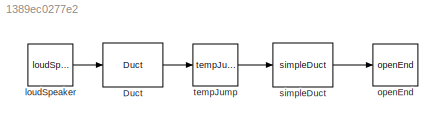
MODEL slx_1389ec0277e2
KIND model
CONFIG AbsTol = auto
CONFIG FixedStep = 1.0
CONFIG MaxStep = auto
CONFIG MinStep = auto
CONFIG RelTol = 1e-3
CONFIG SampleTimeConstraint = Unconstrained
CONFIG Solver = FixedStepDiscrete
CONFIG SolverMode = Auto
CONFIG SolverName = FixedStepDiscrete
CONFIG StartTime = 0.0
CONFIG StopTime = 1.0
BLOCK [Reference] Duct  REF=taXlibrary/Duct
  AttributesFormatString = %<l> m
  Ports = [1, 1]
  SourceBlock = taXlibrary/Duct
BLOCK [Reference] loudSpeaker  REF=taXlibrary/loudSpeaker
  AttributesFormatString = %<Amp> m/s
  Ports = [0, 1]
  SourceBlock = taXlibrary/loudSpeaker
BLOCK [Reference] openEnd  REF=taXlibrary/openEnd
  Ports = [1]
  SourceBlock = taXlibrary/openEnd
BLOCK [Reference] simpleDuct  REF=taXlibrary/simpleDuct
  AttributesFormatString = %<l> m
  Ports = [1, 1]
  SourceBlock = taXlibrary/simpleDuct
BLOCK [Reference] tempJump  REF=taXlibrary/tempJump
  Ports = [1, 1]
  SourceBlock = taXlibrary/tempJump
LINE Duct:1 -> tempJump:1
LINE loudSpeaker:1 -> Duct:1
LINE simpleDuct:1 -> openEnd:1
LINE tempJump:1 -> simpleDuct:1
